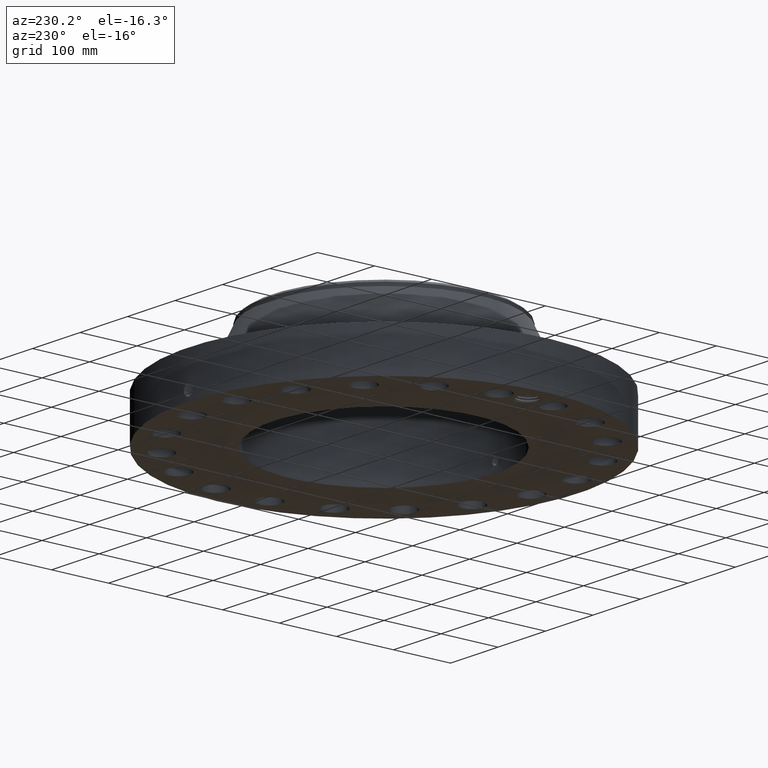
[diagram: clean part render]
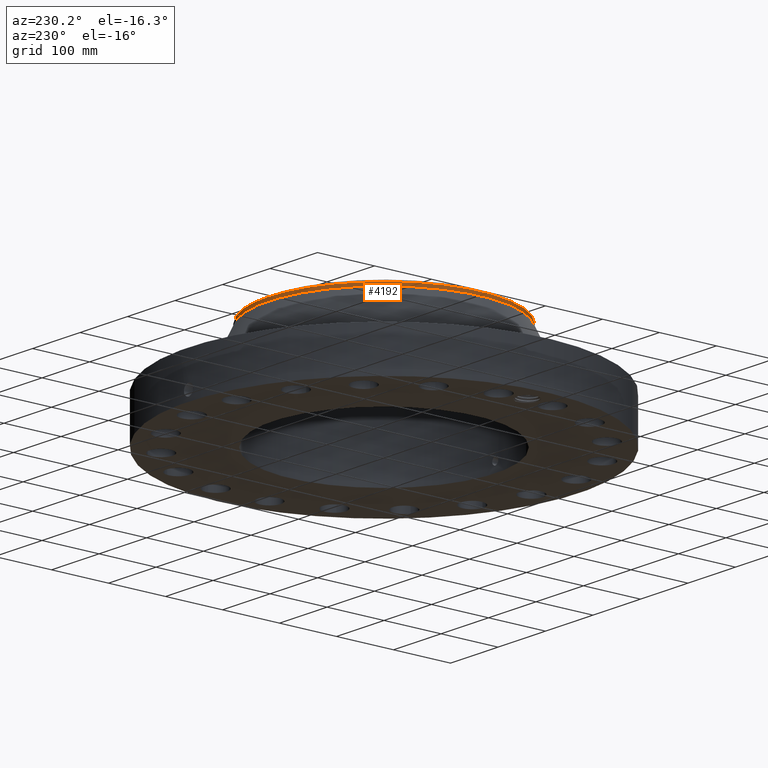
[diagram: same view with one face highlighted and labeled with its STEP entity id]
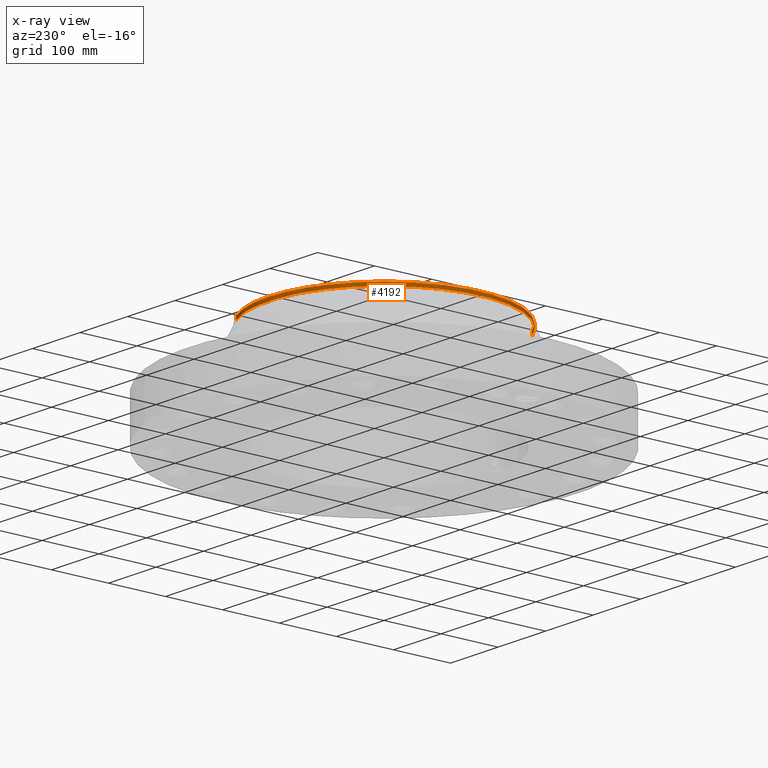
[diagram: x-ray of the same camera — body ghosted, the highlighted face saturated]
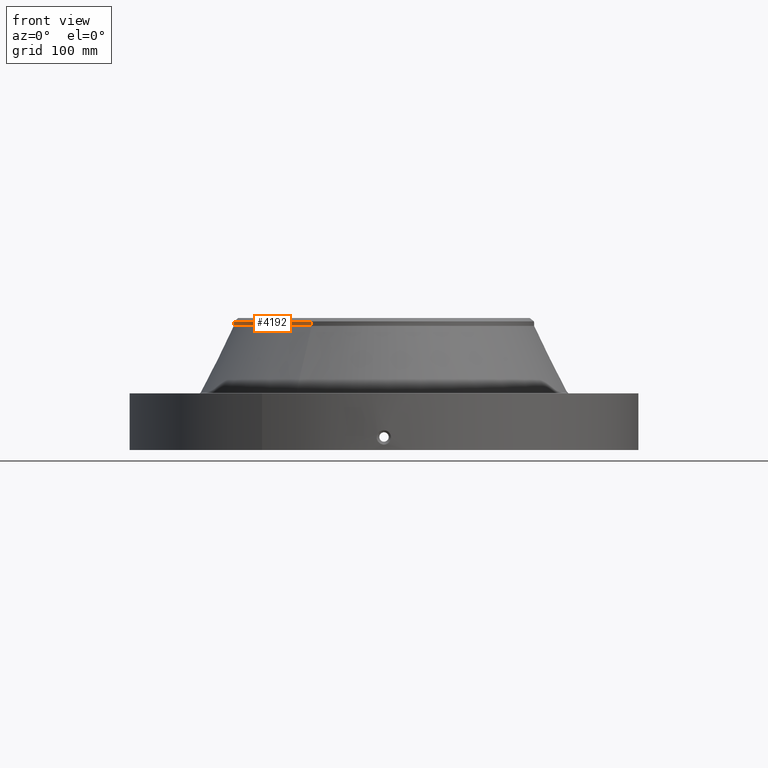
[diagram: same view with one face highlighted and labeled with its STEP entity id]
A machine part, auxiliary view. The second image highlights one B-rep face of the part: STEP entity #4192.
The next image is the same camera in x-ray: the body ghosted, the highlighted face saturated — about 0% of this face is hidden behind the body in this view.
A second angle (front view) of the same face is appended — the face is thin or edge-on in the first view.
In plain terms, the highlighted cylindrical surface (partial cylindrical patch) has radius 203.2 mm, axis along (0, 0, -1).
Its self-contained STEP definition (entity closure, byte-faithful):
#3366=AXIS2_PLACEMENT_3D('Circle Axis2P3D',#3364,#3365,$) ;
#3807=AXIS2_PLACEMENT_3D('Circle Axis2P3D',#3805,#3806,$) ;
#3834=AXIS2_PLACEMENT_3D('Circle Axis2P3D',#3832,#3833,$) ;
#4165=AXIS2_PLACEMENT_3D('Cylinder Axis2P3D',#4162,#4163,#4164) ;
#3342=CARTESIAN_POINT('Vertex',(3.83540430885,7.02066049515,6.83479295521)) ;
#3349=CARTESIAN_POINT('Vertex',(-3.83540430885,-7.02066049515,6.83479295521)) ;
#3364=CARTESIAN_POINT('Axis2P3D Location',(0.,0.,6.83479295521)) ;
#3802=CARTESIAN_POINT('Vertex',(-3.83540430885,7.02066049515,7.07101342765)) ;
#3805=CARTESIAN_POINT('Axis2P3D Location',(0.,0.,7.07101342765)) ;
#3809=CARTESIAN_POINT('Vertex',(-3.83540430885,-7.02066049515,7.07101342765)) ;
#3829=CARTESIAN_POINT('Vertex',(3.83540430885,7.02066049515,7.07101342765)) ;
#3832=CARTESIAN_POINT('Axis2P3D Location',(0.,0.,7.07101342765)) ;
#4162=CARTESIAN_POINT('Axis2P3D Location',(0.,0.,3.75000000001)) ;
#4167=CARTESIAN_POINT('Line Origine',(-3.83540430885,-7.02066049515,6.95290319143)) ;
#4172=CARTESIAN_POINT('Line Origine',(3.83540430885,7.02066049515,6.95290319143)) ;
#3365=DIRECTION('Axis2P3D Direction',(0.,0.,-0.0393700787402)) ;
#3806=DIRECTION('Axis2P3D Direction',(0.,0.,-0.0393700787402)) ;
#3833=DIRECTION('Axis2P3D Direction',(0.,0.,-0.0393700787402)) ;
#4163=DIRECTION('Axis2P3D Direction',(0.,0.,-0.0393700787402)) ;
#4164=DIRECTION('Axis2P3D XDirection',(-0.0188750212049,-0.0345504945626,0.)) ;
#4168=DIRECTION('Vector Direction',(0.,0.,-0.0393700787402)) ;
#4173=DIRECTION('Vector Direction',(0.,0.,-0.0393700787402)) ;
#4169=VECTOR('Line Direction',#4168,0.0393700787402) ;
#4174=VECTOR('Line Direction',#4173,0.0393700787402) ;
#4186=ORIENTED_EDGE('',*,*,#4176,.F.) ;
#4187=ORIENTED_EDGE('',*,*,#3368,.F.) ;
#4188=ORIENTED_EDGE('',*,*,#4171,.T.) ;
#4189=ORIENTED_EDGE('',*,*,#3811,.F.) ;
#4190=ORIENTED_EDGE('',*,*,#3836,.T.) ;
#4192=ADVANCED_FACE('PartBody',(#4191),#4166,.T.) ;
#3367=CIRCLE('generated circle',#3366,8.00000000003) ;
#3808=CIRCLE('generated circle',#3807,8.00000000003) ;
#3835=CIRCLE('generated circle',#3834,8.00000000003) ;
#4166=CYLINDRICAL_SURFACE('generated cylinder',#4165,8.00000000003) ;
#3368=EDGE_CURVE('',#3350,#3343,#3367,.T.) ;
#3811=EDGE_CURVE('',#3803,#3810,#3808,.F.) ;
#3836=EDGE_CURVE('',#3803,#3830,#3835,.T.) ;
#4171=EDGE_CURVE('',#3350,#3810,#4170,.F.) ;
#4176=EDGE_CURVE('',#3343,#3830,#4175,.F.) ;
#4185=EDGE_LOOP('',(#4186,#4187,#4188,#4189,#4190)) ;
#4191=FACE_OUTER_BOUND('',#4185,.T.) ;
#4170=LINE('Line',#4167,#4169) ;
#4175=LINE('Line',#4172,#4174) ;
#3343=VERTEX_POINT('',#3342) ;
#3350=VERTEX_POINT('',#3349) ;
#3803=VERTEX_POINT('',#3802) ;
#3810=VERTEX_POINT('',#3809) ;
#3830=VERTEX_POINT('',#3829) ;